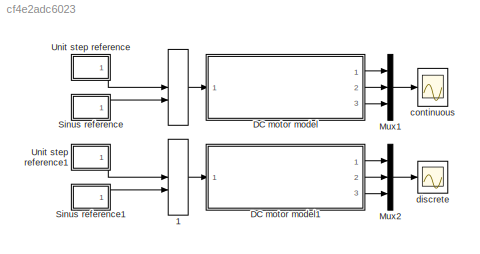
MODEL slx_cf4e2adc6023
KIND model
CONFIG AbsTol = auto
CONFIG FixedStep = 0.001
CONFIG MaxStep = auto
CONFIG MinStep = auto
CONFIG RelTol = 1e-3
CONFIG SampleTimeConstraint = Unconstrained
CONFIG Solver = VariableStepAuto
CONFIG SolverMode = Auto
CONFIG SolverName = VariableStepAuto
CONFIG StartTime = 0.0
CONFIG StopTime = 10.0
BLOCK [ManualSwitch]    
BLOCK [ManualSwitch]    1
BLOCK [ModelReference] DC motor model
  CopyOfModelName = DC_motor_continuous.slx
  ModelNameDialog = DC_motor_continuous.slx
  ModelReferenceVersion = 1.7
  Ports = [1, 3]
  Variant = off
BLOCK [ModelReference] DC motor model1
  CopyOfModelName = DC_motor_discrete.slx
  ModelNameDialog = DC_motor_discrete.slx
  ModelReferenceVersion = 1.8
  Ports = [1, 3]
  Variant = off
BLOCK [Mux] Mux1
  DisplayOption = bar
  Inputs = 3
  Ports = [3, 1]
BLOCK [Mux] Mux2
  DisplayOption = bar
  Inputs = 3
  Ports = [3, 1]
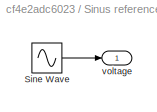
BLOCK [SubSystem] Sinus reference
  Ports = [0, 1]
  RequestExecContextInheritance = off
  Variant = off
BLOCK [Sin] Sinus reference/Sine Wave
  Ports = [0, 1]
  SampleTime = 0
BLOCK [Outport] Sinus reference/voltage
  IconDisplay = Port number
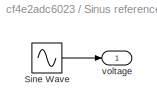
BLOCK [SubSystem] Sinus reference1
  Ports = [0, 1]
  RequestExecContextInheritance = off
  Variant = off
BLOCK [Sin] Sinus reference1/Sine Wave
  Ports = [0, 1]
  SampleTime = 0
BLOCK [Outport] Sinus reference1/voltage
  IconDisplay = Port number
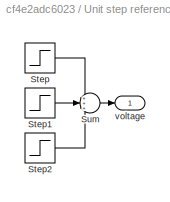
BLOCK [SubSystem] Unit step reference
  Ports = [0, 1]
  RequestExecContextInheritance = off
  Variant = off
BLOCK [Step] Unit step reference/Step
  SampleTime = 0
  Time = 0
BLOCK [Step] Unit step reference/Step1
  After = -2
  SampleTime = 0
  Time = 4
BLOCK [Step] Unit step reference/Step2
  SampleTime = 0
  Time = 8
BLOCK [Sum] Unit step reference/Sum
  IconShape = round
  InputSameDT = off
  Inputs = +++
  OutDataTypeStr = Inherit: Inherit via internal rule
  Ports = [3, 1]
  SaturateOnIntegerOverflow = off
BLOCK [Outport] Unit step reference/voltage
  IconDisplay = Port number
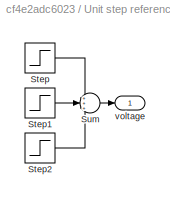
BLOCK [SubSystem] Unit step reference1
  Ports = [0, 1]
  RequestExecContextInheritance = off
  Variant = off
BLOCK [Step] Unit step reference1/Step
  SampleTime = 0
  Time = 0
BLOCK [Step] Unit step reference1/Step1
  After = -2
  SampleTime = 0
  Time = 4
BLOCK [Step] Unit step reference1/Step2
  SampleTime = 0
  Time = 8
BLOCK [Sum] Unit step reference1/Sum
  IconShape = round
  InputSameDT = off
  Inputs = +++
  OutDataTypeStr = Inherit: Inherit via internal rule
  Ports = [3, 1]
  SaturateOnIntegerOverflow = off
BLOCK [Outport] Unit step reference1/voltage
  IconDisplay = Port number
BLOCK [Scope] continuous
  Ports = [1]
  ScopeSpecificationString = Simulink.scopes.TimeScopeBlockCfg('CurrentConfiguration', extmgr.ConfigurationSet(extmgr.Configuration('Core','General UI',true),extmgr.Configuration('Core','Source UI',true),extmgr.Configuration('Sources','WiredSimulink',true,'DataLoggingLimitDataPoints',true,'DataLoggingSaveFormat','Array','DataLoggingDecimation','1','DataLoggingDecimateData',true),extmgr.Configuration('Visuals','Time Domain',tr...<+1499ch>
BLOCK [Scope] discrete
  Ports = [1]
  ScopeSpecificationString = Simulink.scopes.TimeScopeBlockCfg('CurrentConfiguration', extmgr.ConfigurationSet(extmgr.Configuration('Core','General UI',true),extmgr.Configuration('Core','Source UI',true),extmgr.Configuration('Sources','WiredSimulink',true,'DataLoggingLimitDataPoints',true,'DataLoggingSaveFormat','Array','DataLoggingDecimation','1','DataLoggingDecimateData',true,'DataLoggingVariableName','ScopeData2'),extmgr.C...<+1542ch>
LINE    1:1 -> DC motor model1:1
LINE    :1 -> DC motor model:1
LINE DC motor model1:1 -> Mux2:1
LINE DC motor model1:2 -> Mux2:2
LINE DC motor model1:3 -> Mux2:3
LINE DC motor model:1 -> Mux1:1
LINE DC motor model:2 -> Mux1:2
LINE DC motor model:3 -> Mux1:3
LINE Mux1:1 -> continuous:1
LINE Mux2:1 -> discrete:1
LINE Sinus reference/Sine Wave:1 -> Sinus reference/voltage:1
LINE Sinus reference1/Sine Wave:1 -> Sinus reference1/voltage:1
LINE Sinus reference1:1 ->    1:2
LINE Sinus reference:1 ->    :2
LINE Unit step reference/Step1:1 -> Unit step reference/Sum:2
LINE Unit step reference/Step2:1 -> Unit step reference/Sum:3
LINE Unit step reference/Step:1 -> Unit step reference/Sum:1
LINE Unit step reference/Sum:1 -> Unit step reference/voltage:1
LINE Unit step reference1/Step1:1 -> Unit step reference1/Sum:2
LINE Unit step reference1/Step2:1 -> Unit step reference1/Sum:3
LINE Unit step reference1/Step:1 -> Unit step reference1/Sum:1
LINE Unit step reference1/Sum:1 -> Unit step reference1/voltage:1
LINE Unit step reference1:1 ->    1:1
LINE Unit step reference:1 ->    :1
